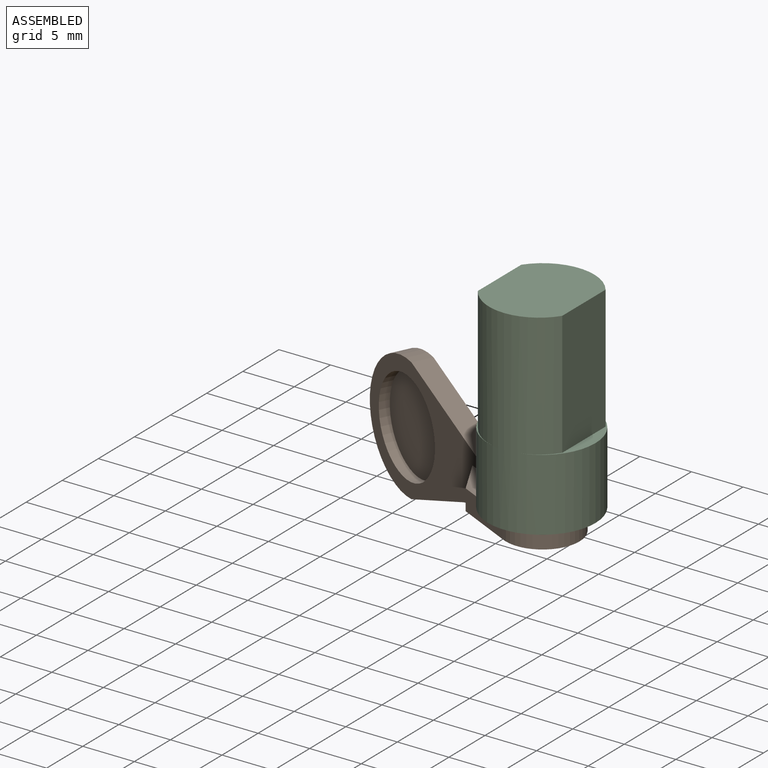
[diagram: assembled view]
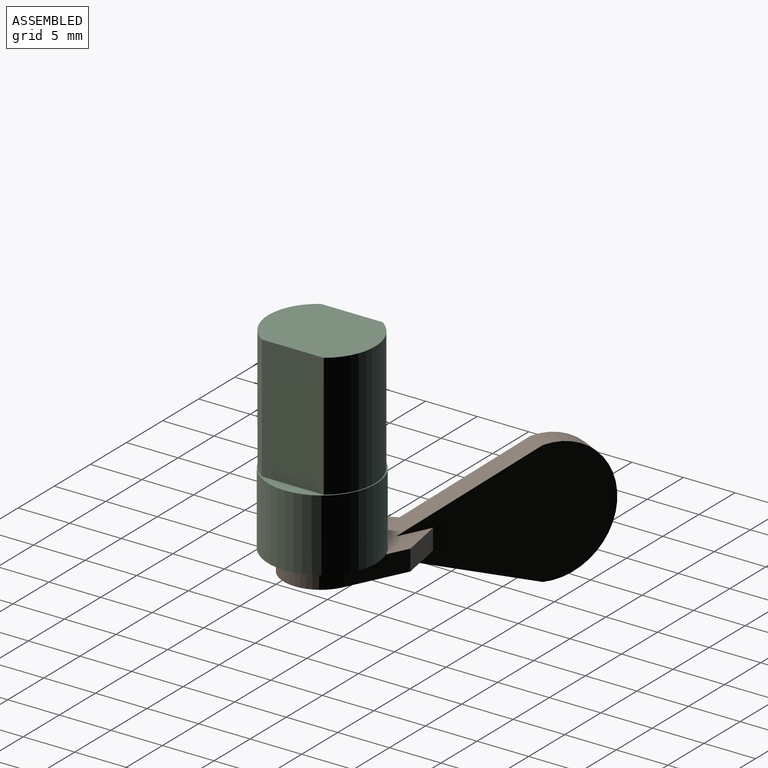
[diagram: assembled view, second angle]
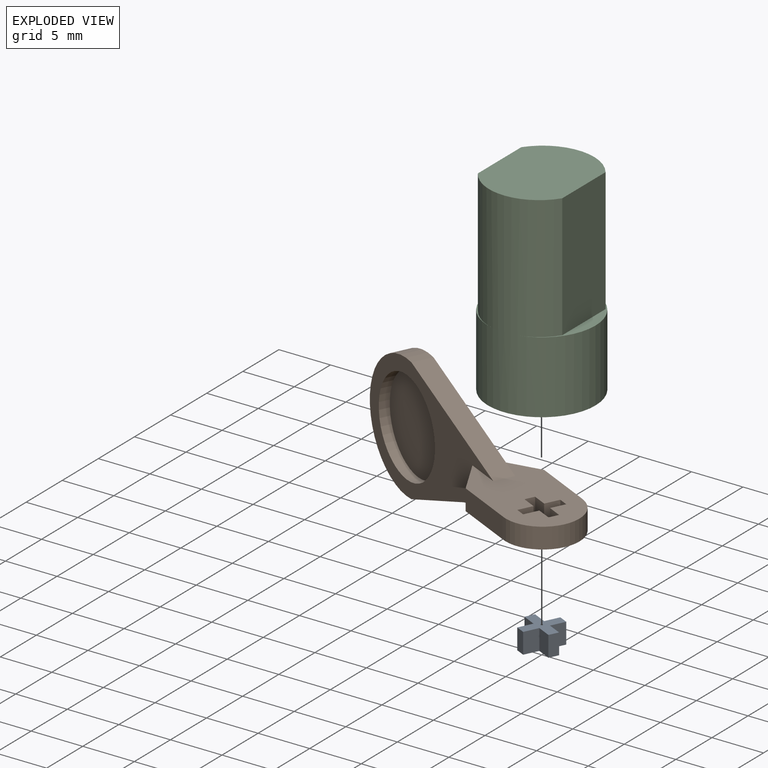
[diagram: exploded view]
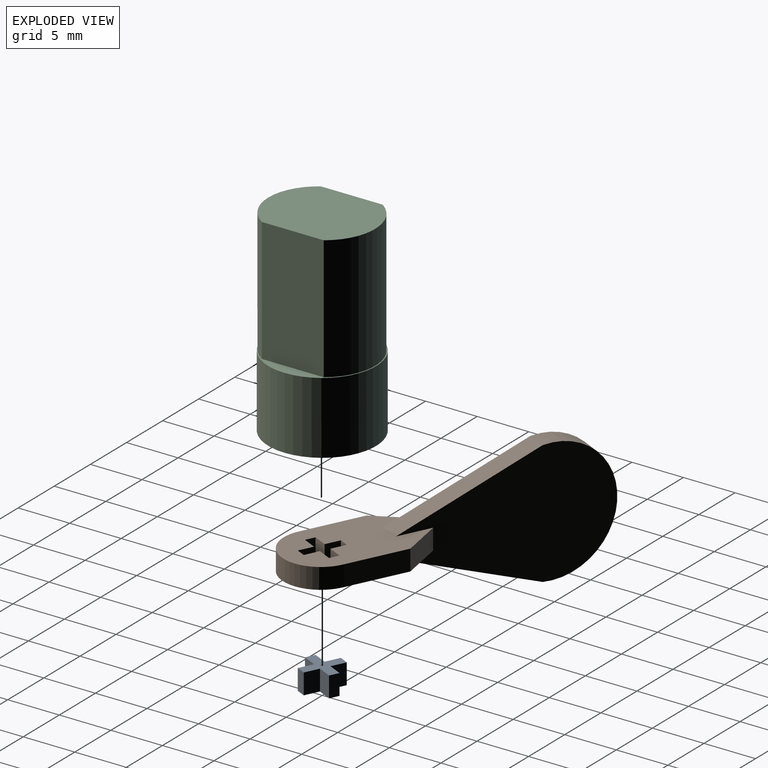
[diagram: exploded view, second angle]
ASSEMBLY  parts=3 mates=2
PART A: 15 faces, bbox 3.9x3.9x2 mm
  f0: plane 2x0.96mm, normal (1,0,0), area 1.9mm2, adj f1,f11,f13,f14
  f1: plane 2x1.47mm, normal (0,-1,0), area 2.9mm2, adj f0,f2,f13,f14
  f2: plane 2x1.48mm, normal (1,0,0), area 3mm2, adj f1,f3,f13,f14
  f3: plane 2x0.97mm, normal (0,-1,0), area 1.9mm2, adj f2,f4,f13,f14
  f4: plane 2x1.48mm, normal (-1,0,0), area 3mm2, adj f3,f5,f13,f14
  f5: plane 2x1.47mm, normal (0,-1,0), area 2.9mm2, adj f4,f6,f13,f14
  f6: plane 2x0.96mm, normal (-1,0,0), area 1.9mm2, adj f5,f7,f13,f14
  f7: plane 2x1.47mm, normal (0,1,0), area 2.9mm2, adj f6,f8,f13,f14
  f8: plane 2x1.48mm, normal (-1,0,0), area 3mm2, adj f7,f9,f13,f14
  f9: plane 2x0.97mm, normal (0,1,0), area 1.9mm2, adj f8,f10,f13,f14
  f10: plane 2x1.48mm, normal (1,0,0), area 3mm2, adj f9,f11,f13,f14
  f11: plane 2x1.47mm, normal (0,1,0), area 2.9mm2, adj f0,f10,f13,f14
  f12: cylinder r=0.1mm len=2mm, axis (0,0,1), area 1.3mm2, adj f13,f14
  f13: plane 3.91x3.91mm, normal (0,0,-1), area 6.6mm2, adj f0,f1,f2,f3,f4,f5,f6,f7
  f14: plane 3.91x3.91mm, normal (0,0,1), area 6.6mm2, adj f0,f1,f2,f3,f4,f5,f6,f7
PART B: 26 faces, bbox 7.1x30x12.1 mm
  f0: cylinder r=4.58mm len=9.17mm, axis (-1,0,0), area 28.8mm2, adj f22,f25
  f1: plane 2x1.47mm, normal (0,-1,0), area 2.9mm2, adj f2,f15,f16,f17
  f2: plane 2x0.96mm, normal (-1,0,0), area 1.9mm2, adj f1,f3,f16,f17
  f3: plane 2x1.47mm, normal (0,1,0), area 2.9mm2, adj f2,f4,f16,f17
  f4: plane 2x1.48mm, normal (-1,0,0), area 3mm2, adj f3,f5,f16,f17
  f5: plane 2x0.97mm, normal (0,1,0), area 1.9mm2, adj f4,f6,f16,f17
  f6: plane 2x1.48mm, normal (1,0,0), area 3mm2, adj f5,f7,f16,f17
  f7: plane 2x1.47mm, normal (0,1,0), area 2.9mm2, adj f6,f8,f16,f17
  f8: plane 2x0.96mm, normal (1,0,0), area 1.9mm2, adj f7,f9,f16,f17
  f9: plane 2x1.47mm, normal (0,-1,0), area 2.9mm2, adj f8,f10,f16,f17
  f10: plane 2x1.48mm, normal (1,0,0), area 3mm2, adj f9,f11,f16,f17
  f11: plane 2x0.97mm, normal (0,-1,0), area 1.9mm2, adj f10,f15,f16,f17
  f12: plane 6.02x2mm, normal (-1,0,0), area 12mm2, adj f13,f16,f17,f18
  f13: cylinder r=3.57mm len=7.14mm, axis (0,0,-1), area 23mm2, adj f12,f14,f16,f17
  f14: plane 6.02x2mm, normal (1,0,0), area 12mm2, adj f13,f16,f17,f19
  f15: plane 2x1.48mm, normal (-1,0,0), area 3mm2, adj f1,f11,f16,f17
  f16: plane 13.24x7.14mm, normal (0,0,1), area 66.6mm2, adj f1,f2,f3,f4,f5,f6,f7,f8
  f17: plane 13.24x7.14mm, normal (0,0,-1), area 66.6mm2, adj f1,f2,f3,f4,f5,f6,f7,f8
  f18: plane 3.51x2.58mm, normal (-0.81,0.59,0), area 8.7mm2, adj f12,f16,f17,f22
  f19: plane 3.5x2.56mm, normal (0.81,0.59,0), area 8.7mm2, adj f14,f16,f17,f21
  f20: cylinder r=6.04mm len=12.08mm, axis (-1,0,0), area 41mm2, adj f21,f22,f23,f24
  f21: plane 20.16x12.08mm, normal (1,0,0), area 153mm2, adj f16,f17,f19,f20,f23,f24
  f22: plane 20.16x12.08mm, normal (-1,0,0), area 87mm2, adj f0,f16,f17,f18,f20,f23,f24
  f23: plane 13.35x4.97mm, normal (0,-0.35,0.94), area 28.5mm2, adj f16,f20,f21,f22
  f24: plane 13.37x5.02mm, normal (0,-0.35,-0.94), area 28.6mm2, adj f17,f20,f21,f22
  f25: plane 9.17x9.17mm, normal (-1,0,0), area 66mm2, adj f0
PART C: 11 faces, bbox 10.4x10.4x21 mm
  f0: plane 12x6mm, normal (1,0,0), area 72mm2, adj f1,f3,f4,f6
  f1: cylinder r=5mm len=12mm, axis (0,0,-1), area 114.9mm2, adj f0,f2,f4,f6
  f2: plane 12x6mm, normal (-1,0,0), area 72mm2, adj f1,f3,f4,f6
  f3: cylinder r=4.87mm len=12mm, axis (0,0,-1), area 116.4mm2, adj f0,f2,f4,f5,f6
  f4: plane 10.35x8.18mm, normal (0,0,1), area 74mm2, adj f0,f1,f2,f3
  f5: plane 2.4x0.15mm, normal (0,0,-1), area 0mm2, adj f3,f7
  f6: plane 10.43x10.29mm, normal (0,0,1), area 11.3mm2, adj f0,f1,f2,f3,f7
  f7: cylinder r=5.21mm len=10.43mm, axis (0,0,1), area 229.3mm2, adj f5,f6,f8
  f8: plane 10.43x10.43mm, normal (0,0,-1), area 85.3mm2, adj f7,f9
  f9: cylinder r=0.1mm len=2mm, axis (0,0,-1), area 1.3mm2, adj f8,f10
  f10: plane 0.21x0.21mm, normal (0,0,-1), area 0mm2, adj f9
PLACE A rot(axis=(0,0,1),64.1deg) t=(0,0,0)mm
PLACE B rot(axis=(0,0,1),64.1deg) t=(0.05,-0.01,-8)mm
PLACE C at identity fixed
MATE fastened B.f6 <-> A.f4  axis (0.44,0.9,0) through (0.88,-0.97,-8)mm
MATE revolute A.f12 <-> C.f9  axis (0,0,1) through (0,0,-9)mm
